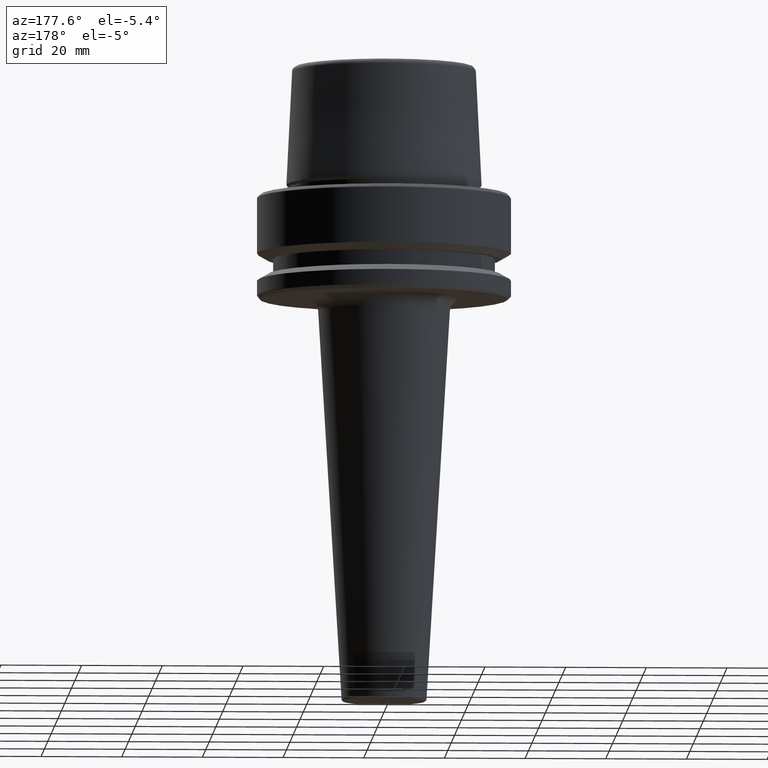
[diagram: clean part render]
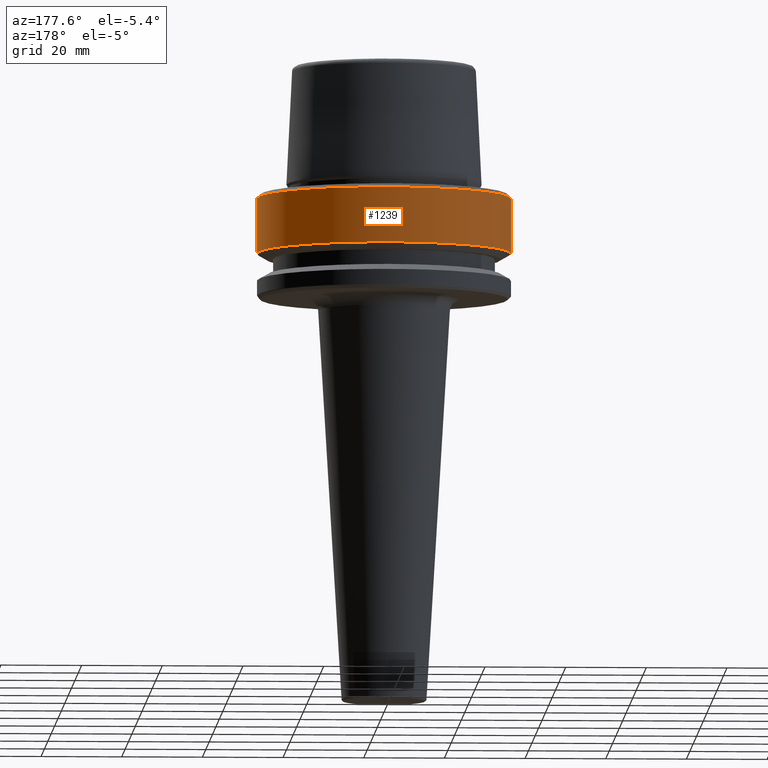
[diagram: same view with one face highlighted and labeled with its STEP entity id]
A machine part, auxiliary view. The second image highlights one B-rep face of the part: STEP entity #1239.
In plain terms, the highlighted cylindrical surface (partial cylindrical patch) has radius 31.5 mm, axis along (-0, -0, 1).
Its self-contained STEP definition (entity closure, byte-faithful):
#44 = DIRECTION ( 'NONE',  ( 1.000000000000000000, 0.0000000000000000000, 0.0000000000000000000 ) ) ;
#54 = DIRECTION ( 'NONE',  ( -0.0000000000000000000, -0.0000000000000000000, 1.000000000000000000 ) ) ;
#88 = CARTESIAN_POINT ( 'NONE',  ( 31.50000000000000000, 0.0000000000000000000, 78.96908074195309300 ) ) ;
#105 = CARTESIAN_POINT ( 'NONE',  ( 31.50000000000000700, 0.0000000000000000000, -0.9656854249492363700 ) ) ;
#231 = CARTESIAN_POINT ( 'NONE',  ( 0.0000000000000000000, 0.0000000000000000000, 78.96908074195309300 ) ) ;
#308 = VECTOR ( 'NONE', #899, 1000.000000000000000 ) ;
#317 = EDGE_CURVE ( 'NONE', #1261, #967, #1034, .T. ) ;
#421 = CYLINDRICAL_SURFACE ( 'NONE', #556, 31.50000000000000000 ) ;
#487 = ORIENTED_EDGE ( 'NONE', *, *, #955, .T. ) ;
#490 = DIRECTION ( 'NONE',  ( -0.0000000000000000000, -0.0000000000000000000, 1.000000000000000000 ) ) ;
#556 = AXIS2_PLACEMENT_3D ( 'NONE', #231, #1106, #954 ) ;
#573 = EDGE_CURVE ( 'NONE', #1261, #849, #1189, .T. ) ;
#612 = DIRECTION ( 'NONE',  ( -0.0000000000000000000, -0.0000000000000000000, 1.000000000000000000 ) ) ;
#627 = CARTESIAN_POINT ( 'NONE',  ( 0.0000000000000000000, 0.0000000000000000000, -14.62250092524070100 ) ) ;
#660 = LINE ( 'NONE', #1076, #1154 ) ;
#703 = EDGE_LOOP ( 'NONE', ( #1071, #487, #1093, #738 ) ) ;
#731 = DIRECTION ( 'NONE',  ( 1.000000000000000000, 0.0000000000000000000, 0.0000000000000000000 ) ) ;
#738 = ORIENTED_EDGE ( 'NONE', *, *, #317, .F. ) ;
#789 = CARTESIAN_POINT ( 'NONE',  ( -31.50000000000000000, 3.857637417314162700E-015, -14.62250092524070100 ) ) ;
#849 = VERTEX_POINT ( 'NONE', #789 ) ;
#899 = DIRECTION ( 'NONE',  ( -0.0000000000000000000, -0.0000000000000000000, 1.000000000000000000 ) ) ;
#954 = DIRECTION ( 'NONE',  ( 1.000000000000000000, 0.0000000000000000000, 0.0000000000000000000 ) ) ;
#955 = EDGE_CURVE ( 'NONE', #849, #1176, #660, .T. ) ;
#967 = VERTEX_POINT ( 'NONE', #105 ) ;
#983 = AXIS2_PLACEMENT_3D ( 'NONE', #627, #54, #731 ) ;
#1034 = LINE ( 'NONE', #88, #308 ) ;
#1056 = CIRCLE ( 'NONE', #1109, 31.50000000000000700 ) ;
#1066 = EDGE_CURVE ( 'NONE', #967, #1176, #1056, .T. ) ;
#1071 = ORIENTED_EDGE ( 'NONE', *, *, #573, .T. ) ;
#1076 = CARTESIAN_POINT ( 'NONE',  ( -31.50000000000000000, 3.857637417314162700E-015, 78.96908074195309300 ) ) ;
#1093 = ORIENTED_EDGE ( 'NONE', *, *, #1066, .F. ) ;
#1106 = DIRECTION ( 'NONE',  ( -0.0000000000000000000, -0.0000000000000000000, 1.000000000000000000 ) ) ;
#1109 = AXIS2_PLACEMENT_3D ( 'NONE', #1215, #612, #44 ) ;
#1154 = VECTOR ( 'NONE', #490, 1000.000000000000000 ) ;
#1176 = VERTEX_POINT ( 'NONE', #1205 ) ;
#1189 = CIRCLE ( 'NONE', #983, 31.50000000000000000 ) ;
#1205 = CARTESIAN_POINT ( 'NONE',  ( -31.50000000000000700, 3.857637417314163500E-015, -0.9656854249492363700 ) ) ;
#1210 = FACE_OUTER_BOUND ( 'NONE', #703, .T. ) ;
#1215 = CARTESIAN_POINT ( 'NONE',  ( 0.0000000000000000000, 0.0000000000000000000, -0.9656854249492363700 ) ) ;
#1239 = ADVANCED_FACE ( 'NONE', ( #1210 ), #421, .T. ) ;
#1250 = CARTESIAN_POINT ( 'NONE',  ( 31.50000000000000000, 0.0000000000000000000, -14.62250092524070100 ) ) ;
#1261 = VERTEX_POINT ( 'NONE', #1250 ) ;